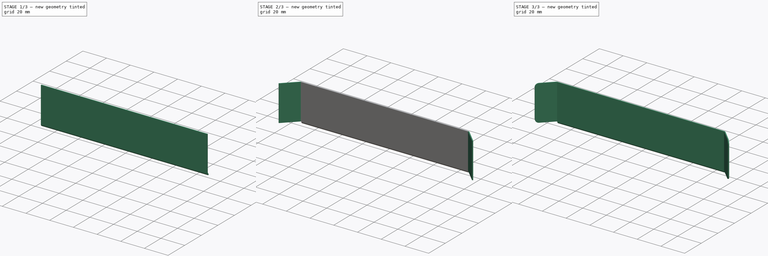
[diagram: build sequence overview — one tinted view per stage of 3, left to right]
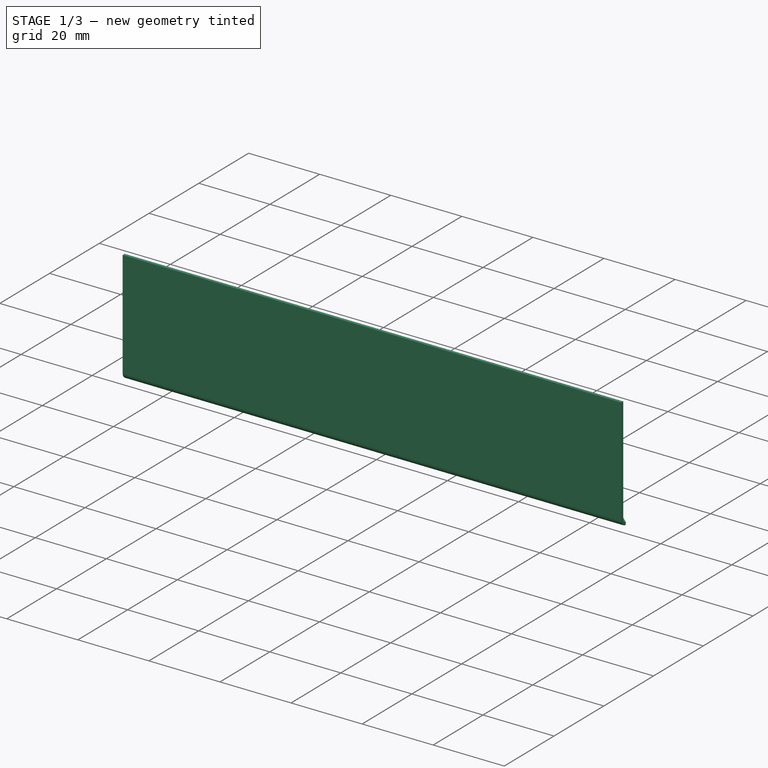
[diagram: stage 1 of 3 — iso view after this stage's code; geometry added in this stage tinted green]
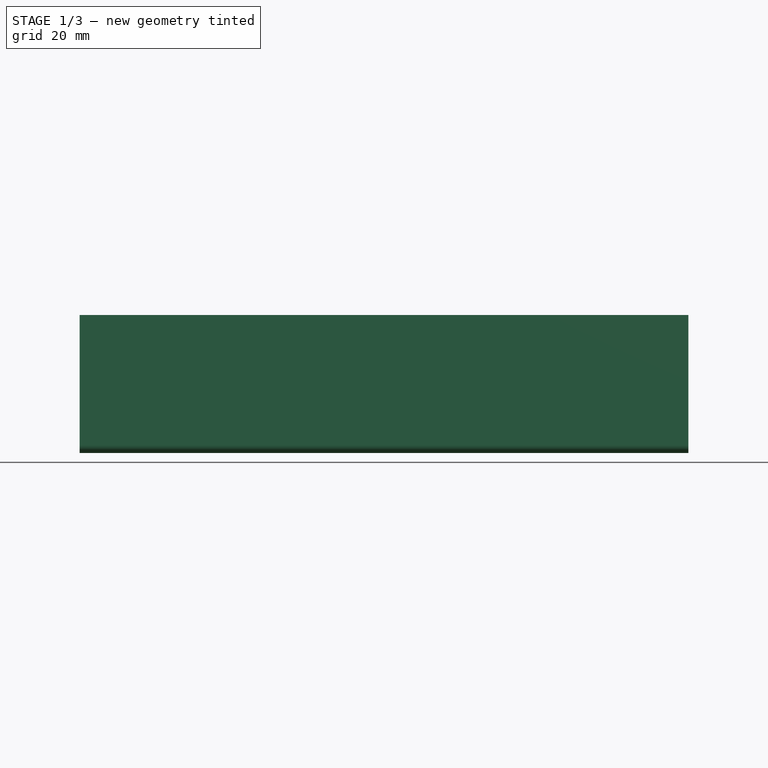
[diagram: stage 1 of 3 — front view after this stage's code; geometry added in this stage tinted green]
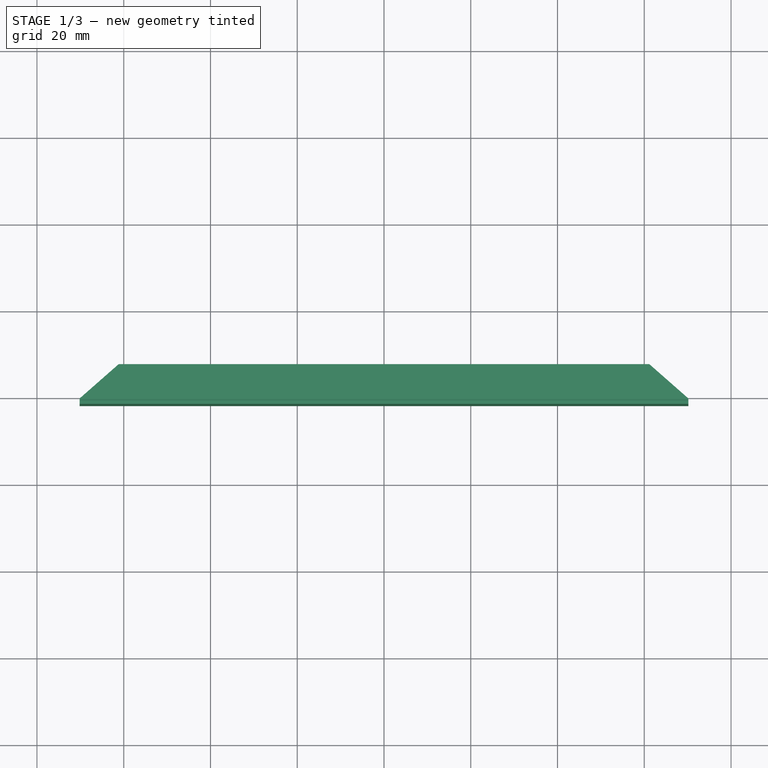
[diagram: stage 1 of 3 — top view after this stage's code; geometry added in this stage tinted green]
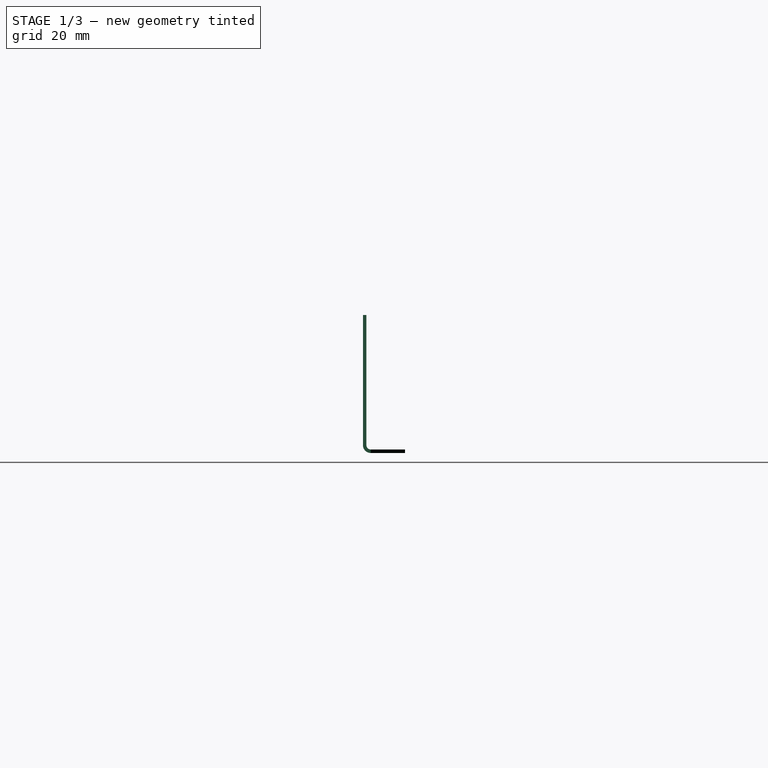
[diagram: stage 1 of 3 — right view after this stage's code; geometry added in this stage tinted green]
FCSTD DOCUMENT  (FreeCAD 0.19R24291 (Git))
Label: mudguard
License: All rights reserved
LicenseURL: http://en.wikipedia.org/wiki/All_rights_reserved
objects: PartDesign::FeaturePython×4, Sketcher::SketchObject×3, PartDesign::Fillet×1, PartDesign::Pocket×1, PartDesign::Body×1, Part::Feature×1, App::MeasureDistance×1
note: 13 computed .brp shape members not serialized (recipe doc carries the construction recipe); baked Part::Feature solids carry a one-line shape summary decoded from their .brp

FEATURE [Sketcher::SketchObject] Sketch
  FullyConstrained = true
  MapMode = 5
  sketch-geometry (4):
    g0: LineSegment StartX=70.1515 StartY=0 StartZ=0 EndX=61.15 EndY=7.90525 EndZ=0
    g1: LineSegment StartX=-61.15 StartY=7.90525 StartZ=0 EndX=-70.1515 EndY=9e-16 EndZ=0
    g2: LineSegment StartX=-61.15 StartY=7.90525 StartZ=0 EndX=61.15 EndY=7.90525 EndZ=0
    g3: LineSegment StartX=-70.1515 StartY=0 StartZ=0 EndX=70.1515 EndY=0 EndZ=0
  constraints (11):
    c: Horizontal(g1,g0)
    c: Horizontal(g2)
    c: Coincident(g0,g2)
    c: Coincident(g1,g2)
    c: Angle(g1,g2) = 2.42095
    c: Angle(g2,g0) = 2.42095
    c: Distance(g0) = 11.98
    c: DistanceX(g2,g2) = 122.3
    c: Coincident(g3,g1)
    c: Coincident(g3,g0)
    c: Symmetric(g0,g1,g-1)
FEATURE [PartDesign::FeaturePython] BaseBend  # WARN: FeaturePython — macro-defined, semantics opaque (R4)
  BendSide = 0
  BendSketch = -> Sketch
  MidPlane = false
  Reverse = false
  length = 100
  radius = 1
  thickness = 0.8
FEATURE [PartDesign::FeaturePython] Bend  # WARN: FeaturePython — macro-defined, semantics opaque (R4)
  AutoMiter = true
  BaseFeature = -> BaseBend
  BendType = 0
  LengthList = [30]
  ReliefFactor = 0.7
  UseReliefFactor = false
  angle = -90
  baseObject = -> BaseBend [Edge12]
  bendAList = [-90]
  extend1 = 0
  extend2 = 0
  gap1 = 0
  gap2 = 0
  invert = false
  kfactor = 0.5
  length = 30
  maxExtendDist = 5
  minGap = 0.1
  minReliefGap = 1
  miterangle1 = 0
  miterangle2 = 0
  offset = 0
  radius = 1
  reliefType = 0
  reliefd = 1
  reliefw = 0.8
  sketchflip = false
  sketchinvert = false
  unfold = false
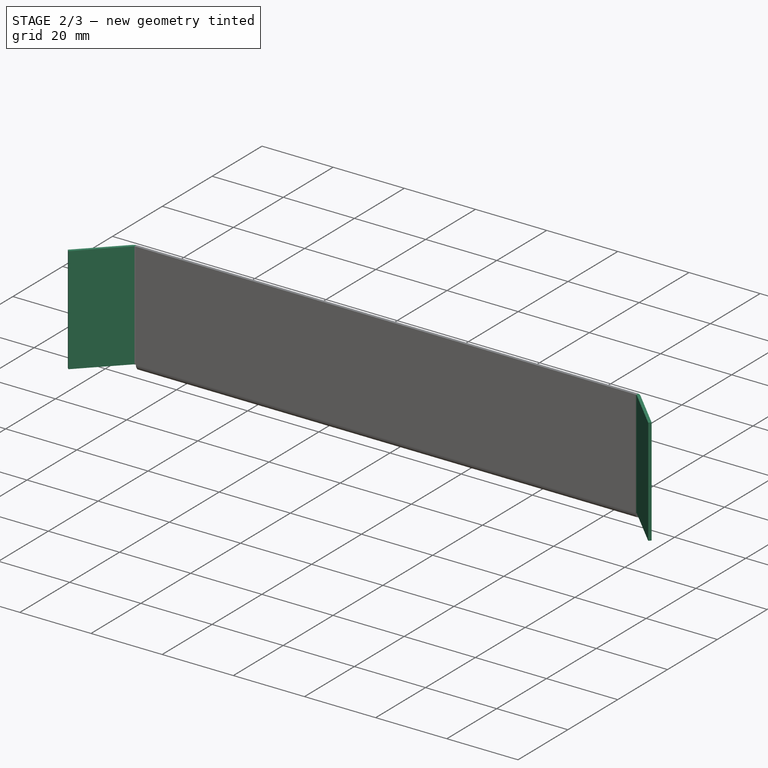
[diagram: stage 2 of 3 — iso view after this stage's code; geometry added in this stage tinted green]
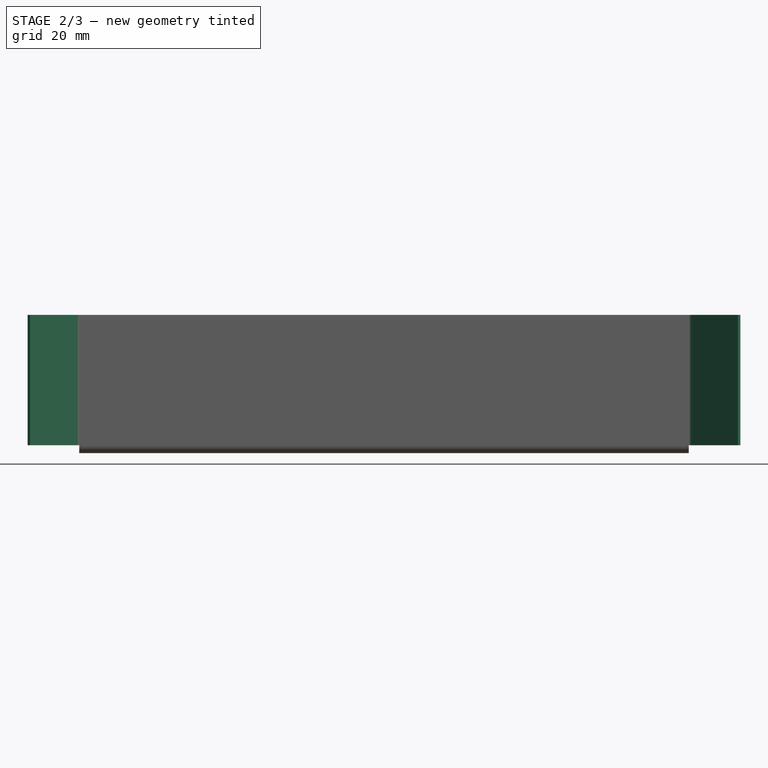
[diagram: stage 2 of 3 — front view after this stage's code; geometry added in this stage tinted green]
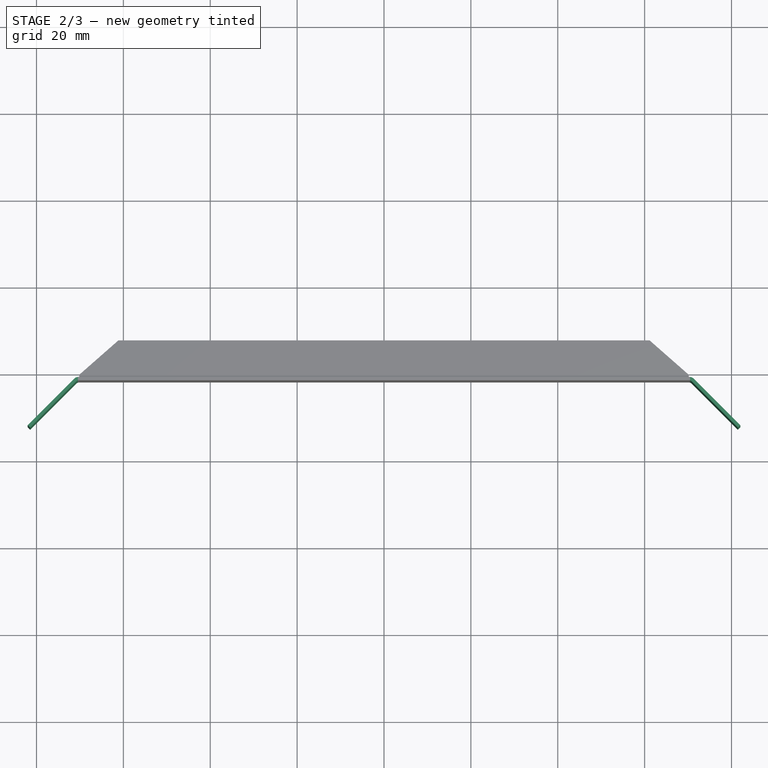
[diagram: stage 2 of 3 — top view after this stage's code; geometry added in this stage tinted green]
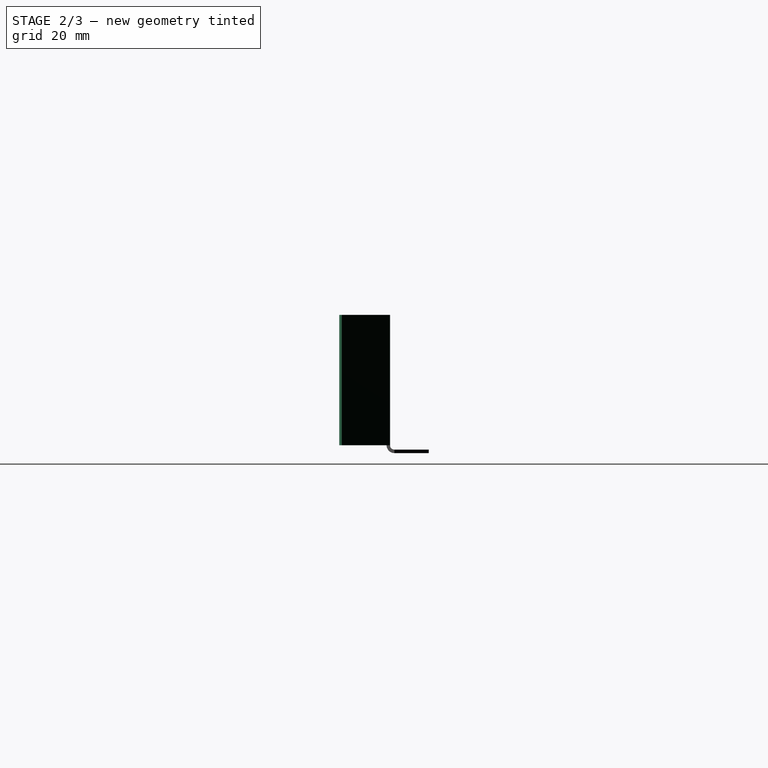
[diagram: stage 2 of 3 — right view after this stage's code; geometry added in this stage tinted green]
FEATURE [PartDesign::FeaturePython] Bend001  # WARN: FeaturePython — macro-defined, semantics opaque (R4)
  AutoMiter = true
  BaseFeature = -> Bend
  BendType = 0
  LengthList = [15]
  ReliefFactor = 0.7
  UseReliefFactor = false
  angle = 45
  baseObject = -> Bend [Edge12]
  bendAList = [45]
  extend1 = 0
  extend2 = 0
  gap1 = 0
  gap2 = 0
  invert = false
  kfactor = 0.5
  length = 15
  maxExtendDist = 5
  minGap = 0.1
  minReliefGap = 1
  miterangle1 = 0
  miterangle2 = 0
  offset = 0
  radius = 1
  reliefType = 0
  reliefd = 1
  reliefw = 0.8
  sketchflip = false
  sketchinvert = false
  unfold = false
FEATURE [PartDesign::FeaturePython] Bend002  # WARN: FeaturePython — macro-defined, semantics opaque (R4)
  AutoMiter = true
  BaseFeature = -> Bend001
  BendType = 0
  LengthList = [15]
  ReliefFactor = 0.7
  UseReliefFactor = false
  angle = 45
  baseObject = -> Bend001 [Edge25]
  bendAList = [45]
  extend1 = 0
  extend2 = 0
  gap1 = 0
  gap2 = 0
  invert = false
  kfactor = 0.5
  length = 15
  maxExtendDist = 5
  minGap = 0.1
  minReliefGap = 1
  miterangle1 = 0
  miterangle2 = 0
  offset = 0
  radius = 1
  reliefType = 0
  reliefd = 1
  reliefw = 0.8
  sketchflip = false
  sketchinvert = false
  unfold = false
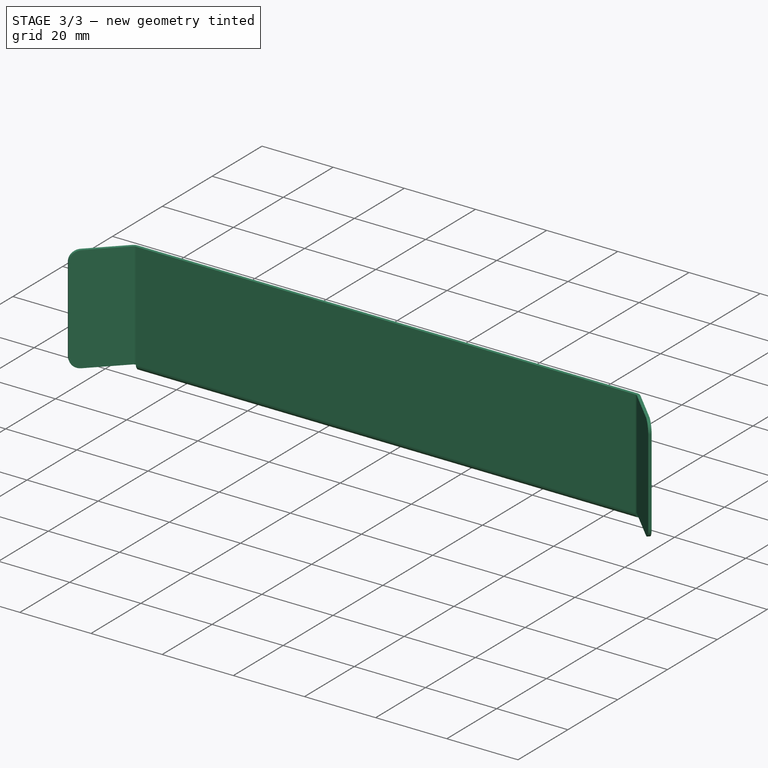
[diagram: stage 3 of 3 — iso view after this stage's code; geometry added in this stage tinted green]
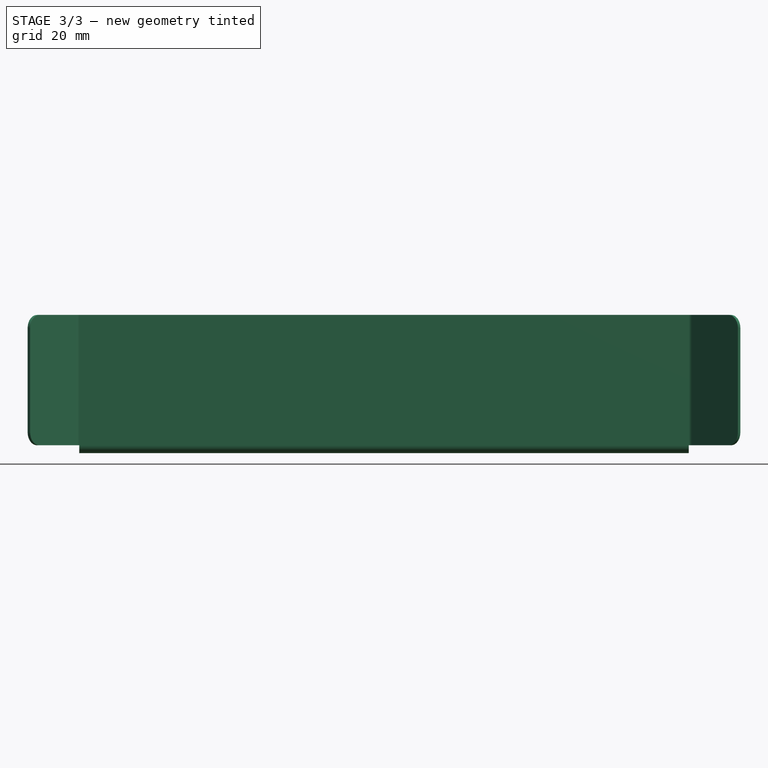
[diagram: stage 3 of 3 — front view after this stage's code; geometry added in this stage tinted green]
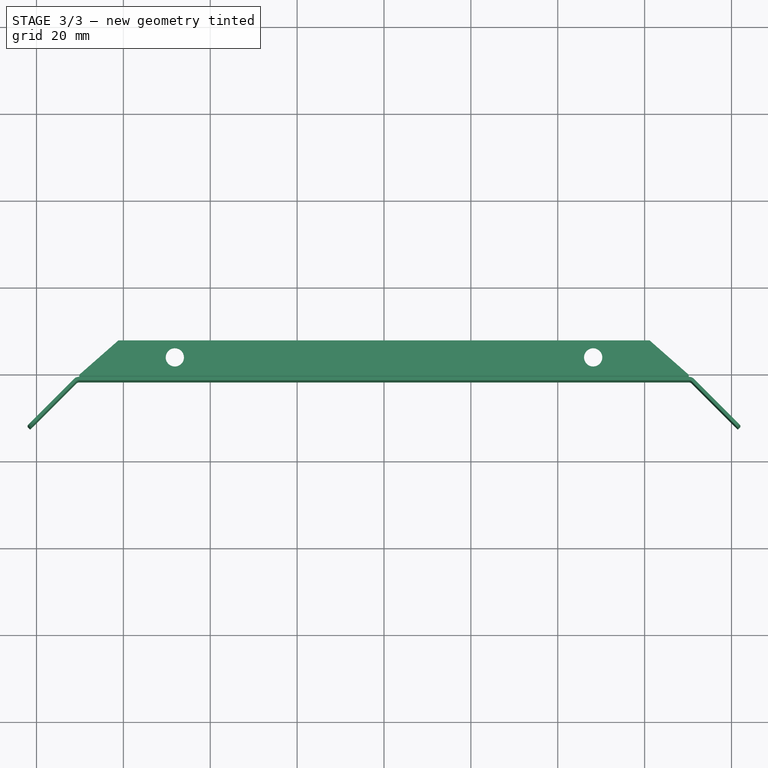
[diagram: stage 3 of 3 — top view after this stage's code; geometry added in this stage tinted green]
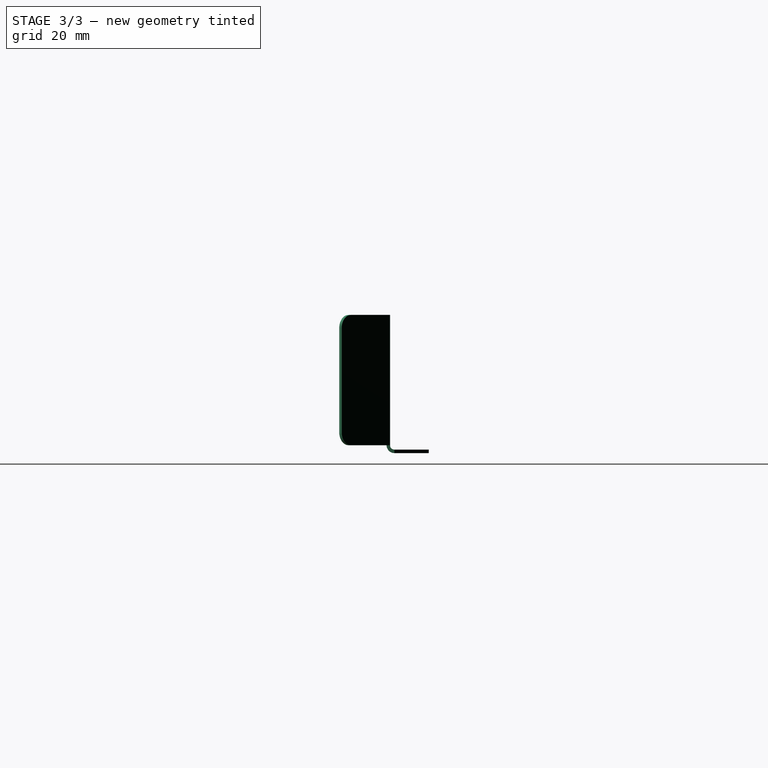
[diagram: stage 3 of 3 — right view after this stage's code; geometry added in this stage tinted green]
FEATURE [PartDesign::Fillet] Fillet
  Base = -> Bend002 [Edge8,Edge2,Edge59,Edge60]
  BaseFeature = -> Bend002
  Radius = 3
  SupportTransform = false
FEATURE [Sketcher::SketchObject] Sketch001
  ExternalGeometry = -> [Fillet]
  FullyConstrained = true
  MapMode = 5
  Placement = pos=(0,0,0.8) rot=(0,0,1;0rad)
  Support = -> [Fillet]
  sketch-geometry (2):
    g0: Circle CenterX=48.1515 CenterY=4 CenterZ=0 NormalX=0 NormalY=0 NormalZ=1 AngleXU=0 Radius=2.1
    g1: Circle CenterX=-48.1515 CenterY=4 CenterZ=0 NormalX=0 NormalY=0 NormalZ=1 AngleXU=0 Radius=2.1
  constraints (6):
    c: Radius(g0) = 2.1
    c: DistanceX(g0,g-4) = 22
    c: DistanceY(g-4,g0) = 4
    c: Radius(g1) = 2.1
    c: DistanceY(g-3,g1) = 4
    c: DistanceX(g-3,g1) = 22
FEATURE [PartDesign::Pocket] Pocket
  BaseFeature = -> Fillet
  Length = 1
  Length2 = 100
  Profile = -> Sketch001
  Type = 0
FEATURE [PartDesign::Body] Body
  Group = -> [BaseBend,Bend,Bend001,Bend002,Fillet,Sketch001,Pocket]
  Origin = -> Origin
  Tip = -> Pocket
FEATURE [Part::Feature] Unfold
  shape: bbox 172.4 x 0.8 x 39.98 mm, 18 faces (baked)
FEATURE [Sketcher::SketchObject] Unfold_Sketch
  FullyConstrained = false
  sketch-geometry (19):
    g0: ArcOfCircle CenterX=-28.8 CenterY=83.1882 CenterZ=0 NormalX=0 NormalY=0 NormalZ=1 AngleXU=1.5708 Radius=3 StartAngle=0 EndAngle=1.5708
    g1: LineSegment StartX=-28.8 StartY=86.1882 StartZ=0 EndX=-4.8 EndY=86.1882 EndZ=0
    g2: ArcOfCircle CenterX=-4.8 CenterY=83.1882 CenterZ=0 NormalX=0 NormalY=0 NormalZ=1 AngleXU=1.5708 Radius=3 StartAngle=4.71239 EndAngle=6.28319
    g3: LineSegment StartX=0.273451 StartY=70.1515 StartZ=0 EndX=8.1787 EndY=61.15 EndZ=0
    g4: LineSegment StartX=8.1787 StartY=-61.15 StartZ=0 EndX=8.1787 EndY=61.15 EndZ=0
    g5: LineSegment StartX=8.1787 StartY=-61.15 StartZ=0 EndX=0.273451 EndY=-70.1515 EndZ=0
    g6: LineSegment StartX=0.273451 StartY=-70.1515 StartZ=0 EndX=-1.8 EndY=-70.1515 EndZ=0
    g7: LineSegment StartX=-1.8 StartY=70.1515 StartZ=0 EndX=0.273451 EndY=70.1515 EndZ=0
    g8: ArcOfCircle CenterX=-4.8 CenterY=-83.1882 CenterZ=0 NormalX=0 NormalY=0 NormalZ=1 AngleXU=1.5708 Radius=3 StartAngle=3.14159 EndAngle=4.71239
    g9: LineSegment StartX=-4.8 StartY=-86.1882 StartZ=0 EndX=-28.8 EndY=-86.1882 EndZ=0
    g10: ArcOfCircle CenterX=-28.8 CenterY=-83.1882 CenterZ=0 NormalX=0 NormalY=0 NormalZ=1 AngleXU=1.5708 Radius=3 StartAngle=1.5708 EndAngle=3.14159
    g11: Circle CenterX=4.27345 CenterY=48.1515 CenterZ=0 NormalX=0 NormalY=0 NormalZ=-1 AngleXU=1.5708 Radius=2.1
    g12: Circle CenterX=4.27345 CenterY=-48.1515 CenterZ=0 NormalX=0 NormalY=0 NormalZ=-1 AngleXU=1.5708 Radius=2.1
    g13: LineSegment StartX=-31.8 StartY=-83.1882 StartZ=0 EndX=-31.8 EndY=83.1882 EndZ=0
    g14: LineSegment StartX=-1.8 StartY=-70.1515 StartZ=0 EndX=-1.8 EndY=-83.1882 EndZ=0
    g15: LineSegment StartX=-1.8 StartY=83.1882 StartZ=0 EndX=-1.8 EndY=70.1515 EndZ=0
    g16: LineSegment StartX=-0.763274 StartY=-70.1515 StartZ=0 EndX=-0.763274 EndY=70.1515 EndZ=0
    g17: LineSegment StartX=-1.8 StartY=-70.6699 StartZ=0 EndX=-31.8 EndY=-70.6699 EndZ=0
    g18: LineSegment StartX=-31.8 StartY=70.6699 StartZ=0 EndX=-1.8 EndY=70.6699 EndZ=0
FEATURE [App::MeasureDistance] Distance  label="Distance: 172.39 mm"
  Distance = 172.392
  P1 = (-86.1882,-1.8,20.8914)
  P2 = (86.1882,-1.8,18.5649)
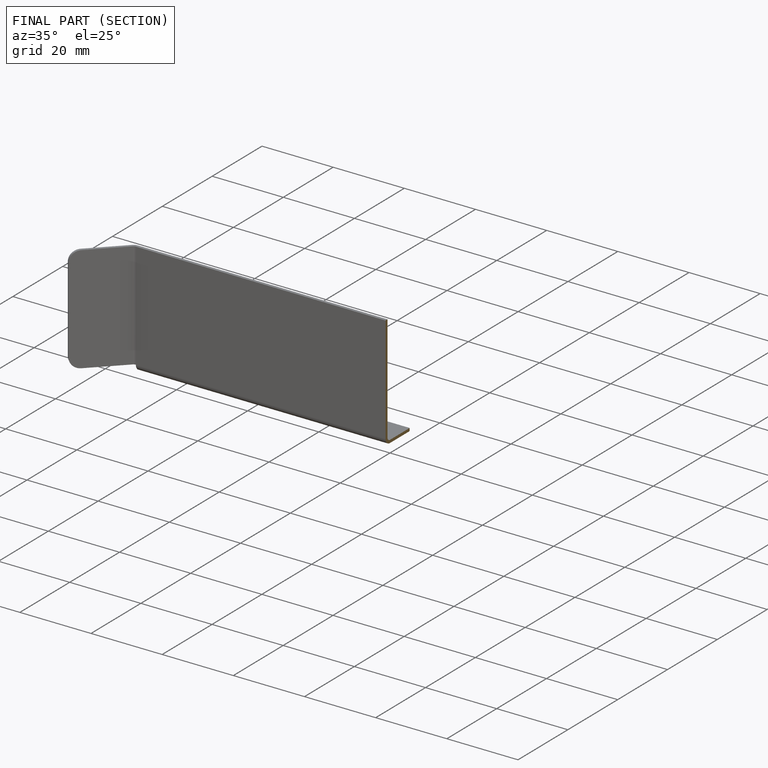
[diagram: finished part — half-section view (interior)]
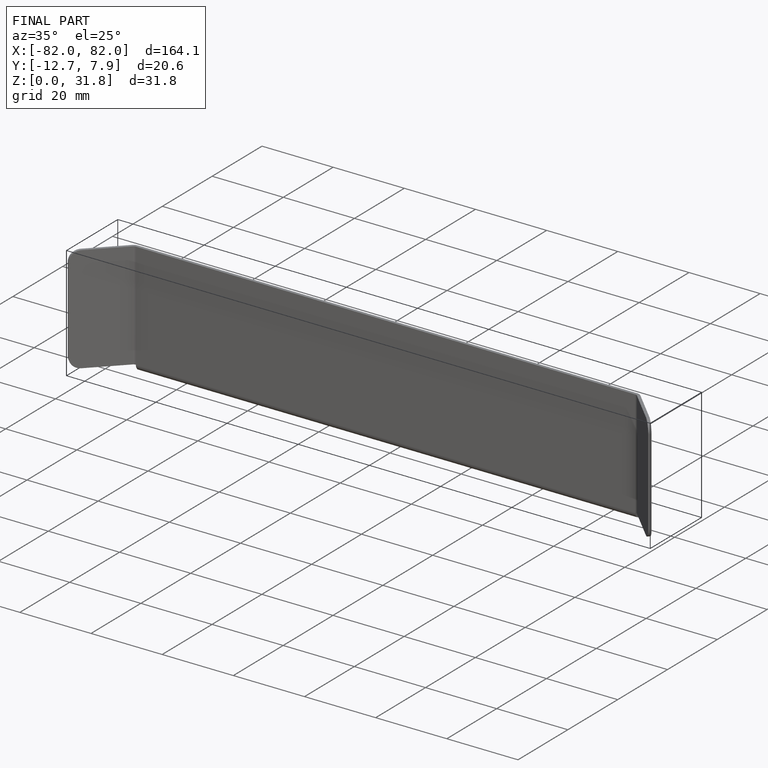
[diagram: finished part — iso view with bounding-box wireframe]
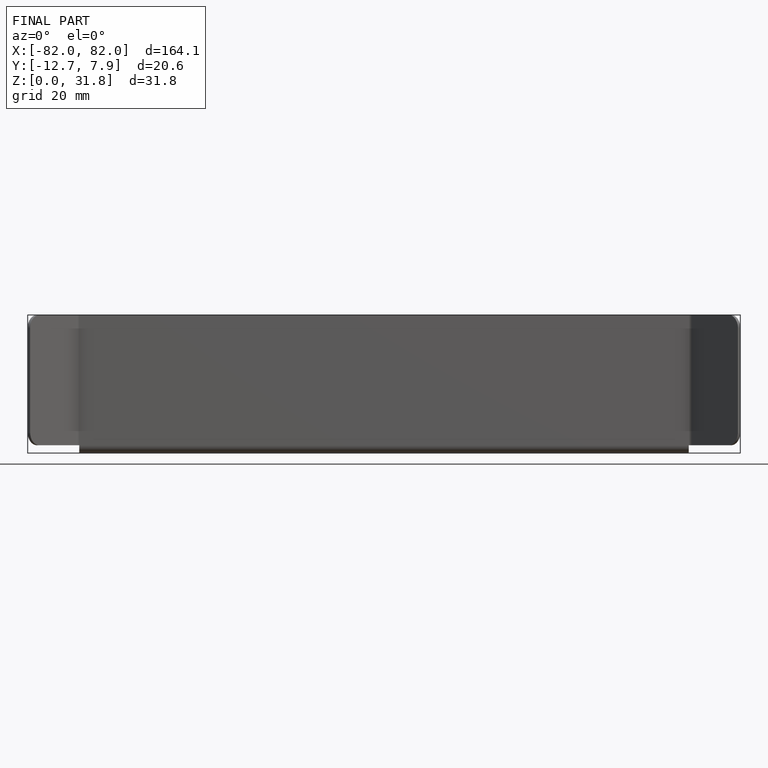
[diagram: finished part — front view with bounding-box wireframe]
